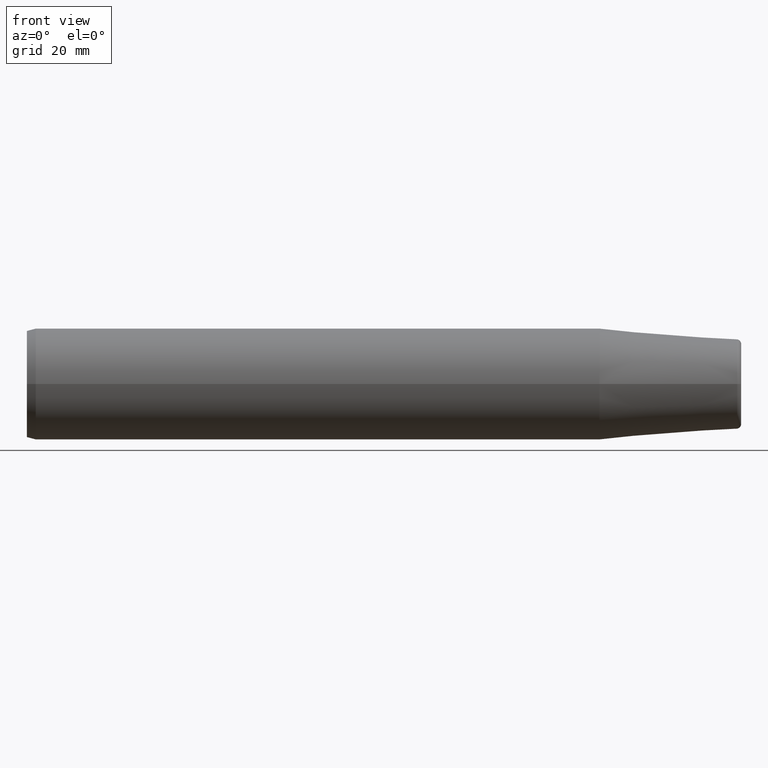
[diagram: clean part render]
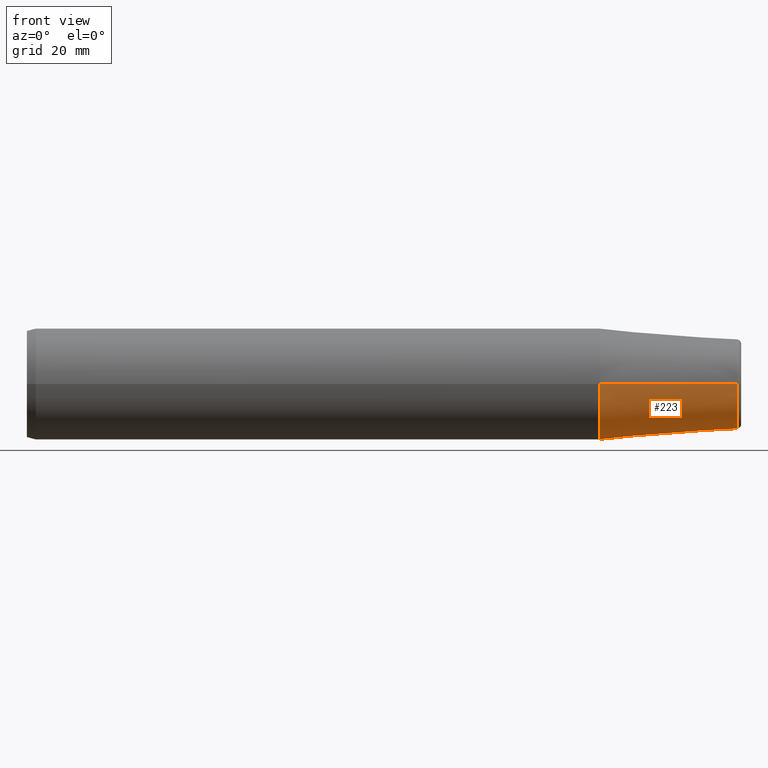
[diagram: same view with one face highlighted and labeled with its STEP entity id]
A machine part, front view. The second image highlights one B-rep face of the part: STEP entity #223.
In plain terms, the highlighted conical surface has half-angle 4.5 deg.
Its self-contained STEP definition (entity closure, byte-faithful):
#38=CARTESIAN_POINT('',(1.282344881596E2,0.E0,0.E0));
#39=DIRECTION('',(-1.E0,0.E0,0.E0));
#40=DIRECTION('',(0.E0,1.E0,0.E0));
#41=AXIS2_PLACEMENT_3D('',#38,#39,#40);
#47=CARTESIAN_POINT('',(1.590784590957E2,0.E0,0.E0));
#48=DIRECTION('',(-1.E0,0.E0,0.E0));
#49=DIRECTION('',(0.E0,1.E0,0.E0));
#50=AXIS2_PLACEMENT_3D('',#47,#48,#49);
#52=DIRECTION('',(-9.969173337331E-1,7.845909572785E-2,3.479333843952E-13));
#53=VECTOR('',#52,3.093934661630E1);
#54=CARTESIAN_POINT('',(1.590784590957E2,1.007252684207E1,-1.076330077068E-11));
#55=LINE('',#54,#53);
#56=DIRECTION('',(-9.969173337331E-1,-7.845909572785E-2,-3.479234170808E-13));
#57=VECTOR('',#56,3.093934661630E1);
#58=CARTESIAN_POINT('',(1.590784590957E2,-1.007252684207E1,1.076299238849E-11));
#59=LINE('',#58,#57);
#113=CARTESIAN_POINT('',(1.282344881596E2,1.25E1,0.E0));
#114=CARTESIAN_POINT('',(1.282344881596E2,-1.25E1,0.E0));
#115=VERTEX_POINT('',#113);
#116=VERTEX_POINT('',#114);
#133=CARTESIAN_POINT('',(1.590784590957E2,1.007252684207E1,0.E0));
#134=CARTESIAN_POINT('',(1.590784590957E2,-1.007252684207E1,0.E0));
#135=VERTEX_POINT('',#133);
#136=VERTEX_POINT('',#134);
#209=CARTESIAN_POINT('',(1.436564736276E2,0.E0,0.E0));
#210=DIRECTION('',(-1.E0,0.E0,0.E0));
#211=DIRECTION('',(0.E0,1.E0,0.E0));
#212=AXIS2_PLACEMENT_3D('',#209,#210,#211);
#213=CONICAL_SURFACE('',#212,1.128626342104E1,4.5E0);
#215=ORIENTED_EDGE('',*,*,#214,.F.);
#217=ORIENTED_EDGE('',*,*,#216,.T.);
#218=ORIENTED_EDGE('',*,*,#203,.T.);
#220=ORIENTED_EDGE('',*,*,#219,.F.);
#221=EDGE_LOOP('',(#215,#217,#218,#220));
#222=FACE_OUTER_BOUND('',#221,.F.);
#223=ADVANCED_FACE('',(#222),#213,.T.);
#42=CIRCLE('',#41,1.25E1);
#51=CIRCLE('',#50,1.007252684207E1);
#203=EDGE_CURVE('',#115,#116,#42,.T.);
#214=EDGE_CURVE('',#135,#136,#51,.T.);
#216=EDGE_CURVE('',#135,#115,#55,.T.);
#219=EDGE_CURVE('',#136,#116,#59,.T.);